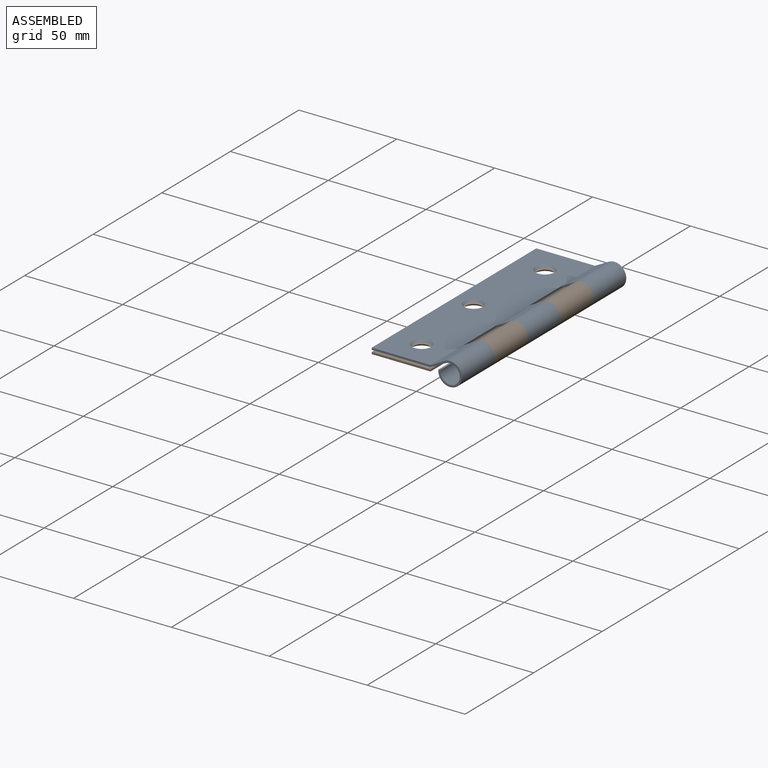
[diagram: assembled view]
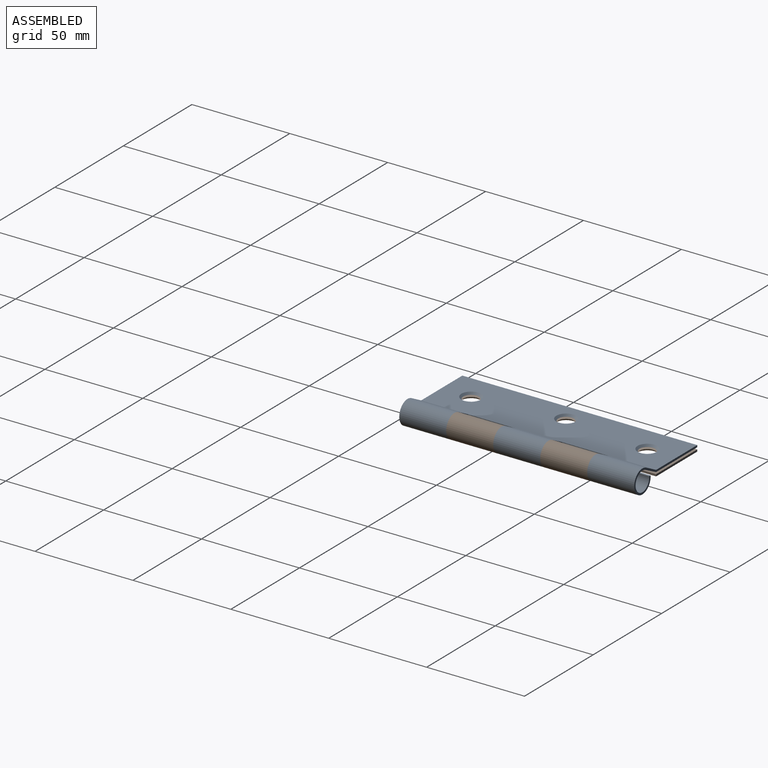
[diagram: assembled view, second angle]
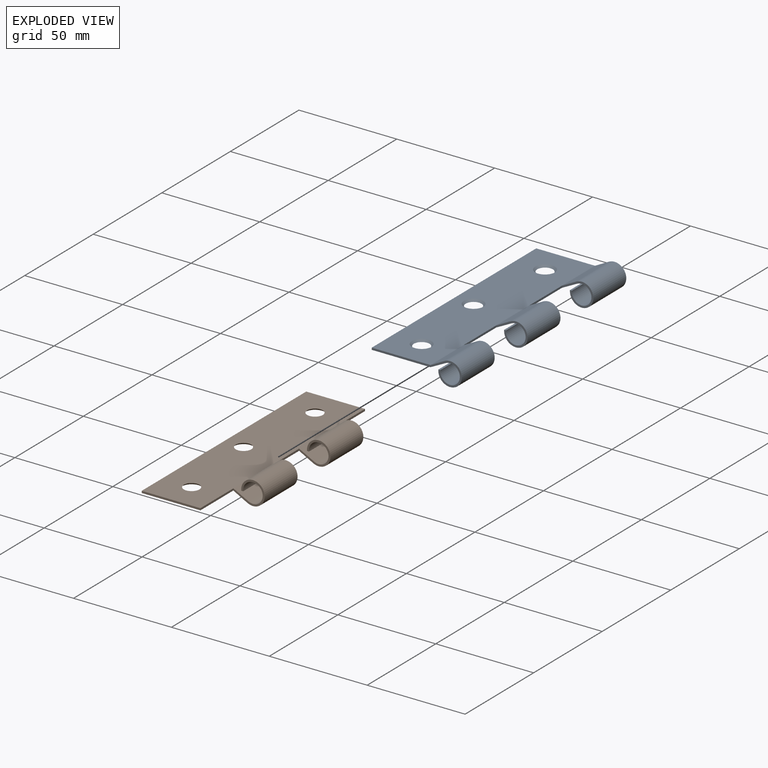
[diagram: exploded view]
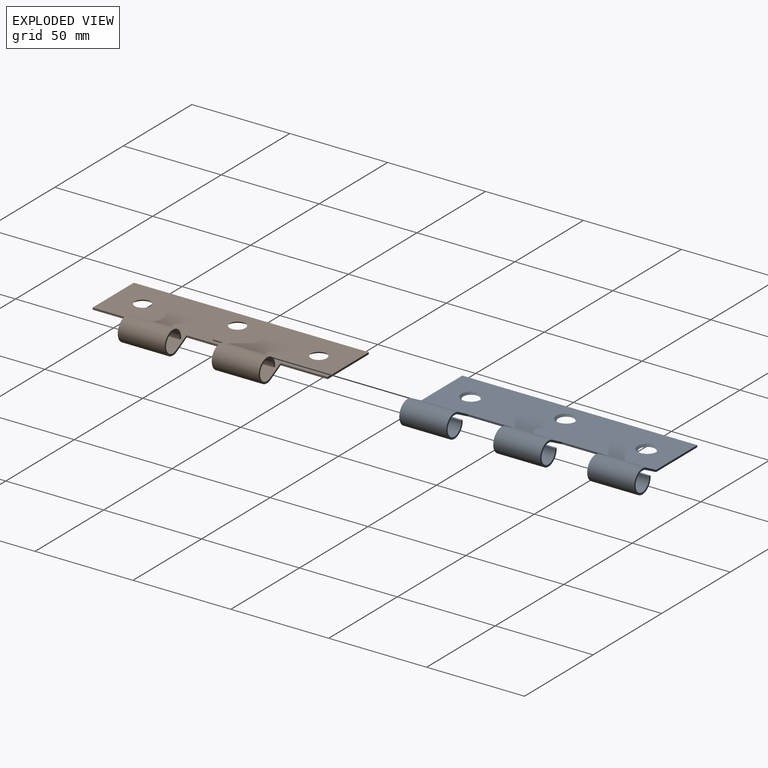
[diagram: exploded view, second angle]
ASSEMBLY  parts=2 mates=2
PART A: 29 faces, bbox 46x120x12 mm
  f0: cylinder r=5mm len=24mm, axis (0,1,0), area 634.3mm2, adj f2,f8,f19,f27
  f1: cylinder r=5mm len=24mm, axis (0,1,0), area 634.3mm2, adj f3,f9,f25,f28
  f2: plane 24x7.72mm, normal (0.46,0,0.89), area 208.2mm2, adj f0,f12,f19,f27
  f3: plane 24x7.72mm, normal (0.46,0,0.89), area 208.2mm2, adj f1,f12,f25,f28
  f4: plane 24x7.2mm, normal (-0.47,0,-0.88), area 195.3mm2, adj f6,f14,f19,f27
  f5: plane 24x7.2mm, normal (-0.47,0,-0.88), area 195.3mm2, adj f7,f14,f25,f28
  f6: cylinder r=6mm len=24mm, axis (0,1,0), area 760.6mm2, adj f4,f8,f19,f27
  f7: cylinder r=6mm len=24mm, axis (0,1,0), area 760.6mm2, adj f5,f9,f25,f28
  f8: plane 24x1mm, normal (0,0,-1), area 24.1mm2, adj f0,f6,f19,f27
  f9: plane 24x1mm, normal (0,0,-1), area 24.1mm2, adj f1,f7,f25,f28
  f10: cylinder r=5mm len=24mm, axis (0,1,0), area 634.3mm2, adj f11,f17,f18,f24
  f11: plane 24x7.72mm, normal (0.46,0,0.89), area 208.2mm2, adj f10,f12,f18,f24
  f12: plane 120x30mm, normal (0,0,1), area 3449.2mm2, adj f2,f3,f11,f13,f18,f19,f20,f21
  f13: plane 120x1mm, normal (-1,0,0), area 120mm2, adj f12,f14,f18,f19
  f14: plane 120x30mm, normal (0,0,-1), area 3364.4mm2, adj f4,f5,f13,f15,f18,f19,f20,f21
  f15: plane 24x7.2mm, normal (-0.47,0,-0.88), area 195.3mm2, adj f14,f16,f18,f24
  f16: cylinder r=6mm len=24mm, axis (0,1,0), area 760.6mm2, adj f15,f17,f18,f24
  f17: plane 24x1mm, normal (0,0,-1), area 24.1mm2, adj f10,f16,f18,f24
  f18: plane 46x12mm, normal (0,-1,0), area 67mm2, adj f10,f11,f12,f13,f14,f15,f16,f17
  f19: plane 46x12mm, normal (0,1,0), area 67mm2, adj f0,f2,f4,f6,f8,f12,f13,f14
  f20: cone r=5mm half-angle=45deg, axis (0,0,-1), area 40mm2, adj f12,f14
  f21: cone r=4mm half-angle=45deg, axis (0,0,-1), area 40mm2, adj f12,f14
  f22: cone r=4mm half-angle=45deg, axis (0,0,-1), area 40mm2, adj f12,f14
  f23: plane 24x1mm, normal (1,0,0), area 24mm2, adj f12,f14,f24,f25
  f24: plane 16x12mm, normal (0,1,0), area 37mm2, adj f10,f11,f15,f16,f17,f23
  f25: plane 16x12mm, normal (0,-1,0), area 37mm2, adj f1,f3,f5,f7,f9,f23
  f26: plane 24x1mm, normal (1,0,0), area 24mm2, adj f12,f14,f27,f28
  f27: plane 16x12mm, normal (0,-1,0), area 37mm2, adj f0,f2,f4,f6,f8,f26
  f28: plane 16x12mm, normal (0,1,0), area 37mm2, adj f1,f3,f5,f7,f9,f26
PART B: 25 faces, bbox 46x120x12 mm
  f0: cylinder r=5mm len=24mm, axis (0,1,0), area 634.3mm2, adj f2,f8,f22,f24
  f1: cylinder r=5mm len=24mm, axis (0,1,0), area 634.3mm2, adj f3,f9,f19,f21
  f2: plane 24x7.72mm, normal (0.46,0,0.89), area 208.2mm2, adj f0,f12,f22,f24
  f3: plane 24x7.72mm, normal (0.46,0,0.89), area 208.2mm2, adj f1,f12,f19,f21
  f4: plane 24x7.2mm, normal (-0.47,0,-0.88), area 195.3mm2, adj f6,f14,f22,f24
  f5: plane 24x7.2mm, normal (-0.47,0,-0.88), area 195.3mm2, adj f7,f14,f19,f21
  f6: cylinder r=6mm len=24mm, axis (0,1,0), area 760.6mm2, adj f4,f8,f22,f24
  f7: cylinder r=6mm len=24mm, axis (0,1,0), area 760.6mm2, adj f5,f9,f19,f21
  f8: plane 24x1mm, normal (0,0,-1), area 24.1mm2, adj f0,f6,f22,f24
  f9: plane 24x1mm, normal (0,0,-1), area 24.1mm2, adj f1,f7,f19,f21
  f10: plane 30x1mm, normal (0,-1,0), area 30mm2, adj f12,f13,f14,f23
  f11: plane 30x1mm, normal (0,1,0), area 30mm2, adj f12,f13,f14,f18
  f12: plane 120x30mm, normal (0,0,1), area 3449.2mm2, adj f2,f3,f10,f11,f13,f15,f16,f17
  f13: plane 120x1mm, normal (-1,0,0), area 120mm2, adj f10,f11,f12,f14
  f14: plane 120x30mm, normal (0,0,-1), area 3364.4mm2, adj f4,f5,f10,f11,f13,f15,f16,f17
  f15: cone r=5mm half-angle=45deg, axis (0,0,-1), area 40mm2, adj f12,f14
  f16: cone r=4mm half-angle=45deg, axis (0,0,-1), area 40mm2, adj f12,f14
  f17: cone r=4mm half-angle=45deg, axis (0,0,-1), area 40mm2, adj f12,f14
  f18: plane 24x1mm, normal (1,0,0), area 24mm2, adj f11,f12,f14,f19
  f19: plane 16x12mm, normal (0,1,0), area 37mm2, adj f1,f3,f5,f7,f9,f18
  f20: plane 24x1mm, normal (1,0,0), area 24mm2, adj f12,f14,f21,f22
  f21: plane 16x12mm, normal (0,-1,0), area 37mm2, adj f1,f3,f5,f7,f9,f20
  f22: plane 16x12mm, normal (0,1,0), area 37mm2, adj f0,f2,f4,f6,f8,f20
  f23: plane 24x1mm, normal (1,0,0), area 24mm2, adj f10,f12,f14,f24
  f24: plane 16x12mm, normal (0,-1,0), area 37mm2, adj f0,f2,f4,f6,f8,f23
PLACE A rot(axis=(-1,0,0),180deg) t=(1.5,8.24,2.7)mm
PLACE B t=(1.5,128.24,1.7)mm fixed
MATE cylindrical A.f0 <-> B.f0  axis (0,-1,0) through (11.5,20.24,2.2)mm
MATE planar B.f10 <-> A.f19  axis (0,-1,0) through (1.5,8.24,1.7)mm
